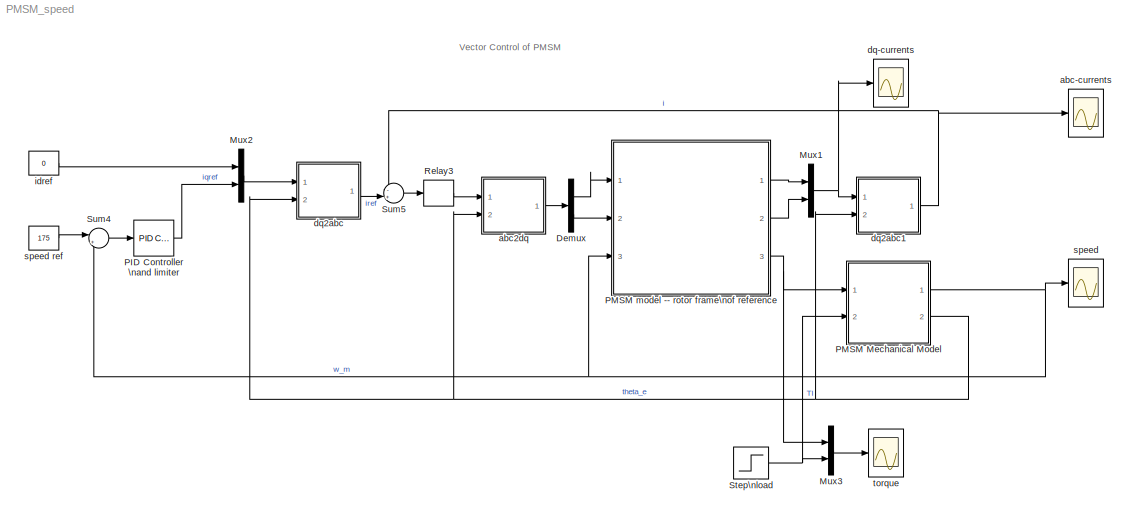
MODEL PMSM_speed
KIND model
CONFIG InitFcn = clc;\nclear;\nRa=2.875;\nLq=8.5e-3;\nLd=8.5e-3;\nphim=0.175;\np=8;\nJ=8e-4;\nBm=0;
CONFIG StopFcn = clc;
BLOCK [Demux] Demux
  Outputs = 2
  Ports = [1, 2]
  SID = 3
BLOCK [Mux] Mux1
  DisplayOption = bar
  Inputs = 2
  Ports = [2, 1]
  SID = 7
BLOCK [Mux] Mux2
  DisplayOption = bar
  Inputs = 2
  Ports = [2, 1]
  SID = 8
BLOCK [Mux] Mux3
  DisplayOption = bar
  Inputs = 2
  Ports = [2, 1]
  SID = 9
BLOCK [Reference] PID Controller \nand limiter  REF=simulink/Continuous/PID Controller
  AntiWindupMode = none
  Controller = P
  D = 0
  DOutDataTypeStr = Inherit: Inherit via internal rule
  DOutMax = []
  DOutMin = []
  DParamDataTypeStr = Inherit: Inherit via internal rule
  DParamMax = []
  DParamMin = []
  ExternalReset = none
  FilterContinuousStateAttributes = ''
  FilterMethod = Forward Euler
  FilterOutDataTypeStr = Inherit: Inherit via internal rule
  FilterOutMax = []
  FilterOutMin = []
  FilterRTWStateStorageClass = Auto
  FilterStateMustResolveToSignalObject = off
  Form = Parallel
  I = 1
  IOutDataTypeStr = Inherit: Inherit via internal rule
  IOutMax = []
  IOutMin = []
  IParamDataTypeStr = Inherit: Inherit via internal rule
  IParamMax = []
  IParamMin = []
  IgnoreLimit = off
  InitialConditionForFilter = 0
  InitialConditionForIntegrator = 0
  InitialConditionSource = internal
  IntegratorContinuousStateAttributes = ''
  IntegratorMethod = Forward Euler
  IntegratorOutDataTypeStr = Inherit: Inherit via internal rule
  IntegratorOutMax = []
  IntegratorOutMin = []
  IntegratorRTWStateStorageClass = Auto
  IntegratorStateMustResolveToSignalObject = off
  Kb = 1
  KbOutDataTypeStr = Inherit: Inherit via internal rule
  KbOutMax = []
  KbOutMin = []
  KbParamDataTypeStr = Inherit: Inherit via internal rule
  KbParamMax = []
  KbParamMin = []
  Kt = 1
  KtOutDataTypeStr = Inherit: Inherit via internal rule
  KtOutMax = []
  KtOutMin = []
  KtParamDataTypeStr = Inherit: Inherit via internal rule
  KtParamMax = []
  KtParamMin = []
  LimitOutput = on
  LinearizeAsGain = on
  LockScale = off
  LowerSaturationLimit = -10
  N = 100
  NOutDataTypeStr = Inherit: Inherit via internal rule
  NOutMax = []
  NOutMin = []
  NParamDataTypeStr = Inherit: Inherit via internal rule
  NParamMax = []
  NParamMin = []
  P = 10
  POutDataTypeStr = Inherit: Inherit via internal rule
  POutMax = []
  POutMin = []
  PParamDataTypeStr = Inherit: Inherit via internal rule
  PParamMax = []
  PParamMin = []
  Ports = [1, 1]
  RndMeth = Floor
  SID = 125
  SampleTime = 1
  SaturateOnIntegerOverflow = off
  SaturationOutDataTypeStr = Inherit: Same as input
  SaturationOutMax = []
  SaturationOutMin = []
  SourceBlock = simulink/Continuous/PID Controller
  SourceType = PID 1dof
  SumAccumDataTypeStr = Inherit: Inherit via internal rule
  SumDAccumDataTypeStr = Inherit: Inherit via internal rule
  SumDOutDataTypeStr = Inherit: Inherit via internal rule
  SumDOutMax = []
  SumDOutMin = []
  SumI1AccumDataTypeStr = Inherit: Inherit via internal rule
  SumI1OutDataTypeStr = Inherit: Inherit via internal rule
  SumI1OutMax = []
  SumI1OutMin = []
  SumI2AccumDataTypeStr = Inherit: Inherit via internal rule
  SumI2OutDataTypeStr = Inherit: Inherit via internal rule
  SumI2OutMax = []
  SumI2OutMin = []
  SumI3AccumDataTypeStr = Inherit: Inherit via internal rule
  SumI3OutDataTypeStr = Inherit: Inherit via internal rule
  SumI3OutMax = []
  SumI3OutMin = []
  SumOutDataTypeStr = Inherit: Inherit via internal rule
  SumOutMax = []
  SumOutMin = []
  TimeDomain = Continuous-time
  TrackingMode = off
  UpperSaturationLimit = 10
  ZeroCross = on
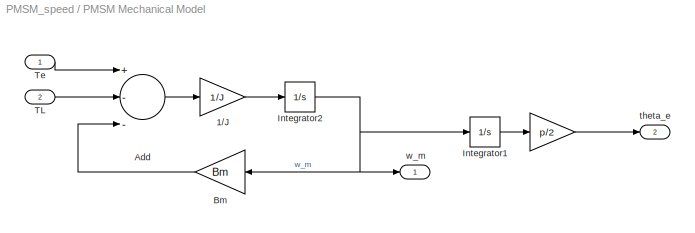
BLOCK [SubSystem] PMSM Mechanical Model
  FunctionWithSeparateData = off
  MaskHideContents = off
  MinAlgLoopOccurrences = off
  Opaque = off
  Ports = [2, 2]
  PropExecContextOutsideSubsystem = off
  RTWSystemCode = Auto
  RequestExecContextInheritance = off
  SID = 116
BLOCK [Gain] PMSM Mechanical Model/  
  Gain = p/2
  SID = 57
  SaturateOnIntegerOverflow = off
BLOCK [Gain] PMSM Mechanical Model/1//J
  Gain = 1/J
  SID = 1
  SaturateOnIntegerOverflow = off
BLOCK [Sum] PMSM Mechanical Model/Add
  InputSameDT = off
  Inputs = +--
  OutDataTypeStr = Inherit: Inherit via internal rule
  Ports = [3, 1]
  SID = 121
  SaturateOnIntegerOverflow = off
BLOCK [Gain] PMSM Mechanical Model/Bm
  Gain = Bm
  SID = 2
BLOCK [Integrator] PMSM Mechanical Model/Integrator1
  Ports = [1, 1]
  SID = 4
BLOCK [Integrator] PMSM Mechanical Model/Integrator2
  Ports = [1, 1]
  SID = 5
BLOCK [Inport] PMSM Mechanical Model/TL
  IconDisplay = Port number
  Port = 2
  SID = 124
BLOCK [Inport] PMSM Mechanical Model/Te
  IconDisplay = Port number
  SID = 123
BLOCK [Outport] PMSM Mechanical Model/theta_e
  IconDisplay = Port number
  Port = 2
  SID = 120
BLOCK [Outport] PMSM Mechanical Model/w_m
  IconDisplay = Port number
  SID = 119
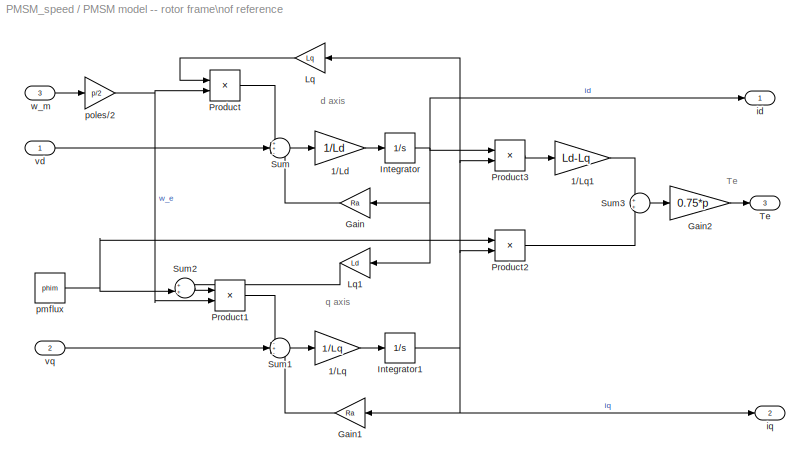
BLOCK [SubSystem] PMSM model -- rotor frame\nof reference
  FunctionWithSeparateData = off
  MaskHideContents = off
  MinAlgLoopOccurrences = off
  Opaque = off
  Ports = [3, 3]
  PropExecContextOutsideSubsystem = off
  RTWSystemCode = Auto
  RequestExecContextInheritance = off
  SID = 58
BLOCK [Gain] PMSM model -- rotor frame\nof reference/1//Ld
  Gain = 1/Ld
  SID = 62
BLOCK [Gain] PMSM model -- rotor frame\nof reference/1//Lq
  Gain = 1/Lq
  SID = 63
BLOCK [Gain] PMSM model -- rotor frame\nof reference/1//Lq1
  Gain = Ld-Lq
  SID = 64
BLOCK [Gain] PMSM model -- rotor frame\nof reference/Gain
  Gain = Ra
  SID = 65
BLOCK [Gain] PMSM model -- rotor frame\nof reference/Gain1
  Gain = Ra
  SID = 66
BLOCK [Gain] PMSM model -- rotor frame\nof reference/Gain2
  Gain = 0.75*p
  SID = 67
BLOCK [Integrator] PMSM model -- rotor frame\nof reference/Integrator
  Ports = [1, 1]
  SID = 68
BLOCK [Integrator] PMSM model -- rotor frame\nof reference/Integrator1
  Ports = [1, 1]
  SID = 69
BLOCK [Gain] PMSM model -- rotor frame\nof reference/Lq
  Gain = Lq
  SID = 70
BLOCK [Gain] PMSM model -- rotor frame\nof reference/Lq1
  Gain = Ld
  SID = 71
BLOCK [Product] PMSM model -- rotor frame\nof reference/Product
  Ports = [2, 1]
  RndMeth = Floor
  SID = 72
BLOCK [Product] PMSM model -- rotor frame\nof reference/Product1
  Ports = [2, 1]
  RndMeth = Floor
  SID = 73
BLOCK [Product] PMSM model -- rotor frame\nof reference/Product2
  Ports = [2, 1]
  RndMeth = Floor
  SID = 74
BLOCK [Product] PMSM model -- rotor frame\nof reference/Product3
  Ports = [2, 1]
  RndMeth = Floor
  SID = 75
BLOCK [Sum] PMSM model -- rotor frame\nof reference/Sum
  IconShape = round
  Inputs = ++-
  Ports = [3, 1]
  SID = 76
BLOCK [Sum] PMSM model -- rotor frame\nof reference/Sum1
  IconShape = round
  Inputs = -+-
  Ports = [3, 1]
  SID = 77
BLOCK [Sum] PMSM model -- rotor frame\nof reference/Sum2
  IconShape = round
  Inputs = ++|
  Ports = [2, 1]
  SID = 78
BLOCK [Sum] PMSM model -- rotor frame\nof reference/Sum3
  IconShape = round
  Ports = [2, 1]
  SID = 79
BLOCK [Outport] PMSM model -- rotor frame\nof reference/Te
  IconDisplay = Port number
  Port = 3
  SID = 84
BLOCK [Outport] PMSM model -- rotor frame\nof reference/id
  IconDisplay = Port number
  SID = 82
BLOCK [Outport] PMSM model -- rotor frame\nof reference/iq
  IconDisplay = Port number
  Port = 2
  SID = 83
BLOCK [Constant] PMSM model -- rotor frame\nof reference/pmflux
  SID = 80
  Value = phim
BLOCK [Gain] PMSM model -- rotor frame\nof reference/poles//2
  Gain = p/2
  SID = 81
BLOCK [Inport] PMSM model -- rotor frame\nof reference/vd
  IconDisplay = Port number
  SID = 59
BLOCK [Inport] PMSM model -- rotor frame\nof reference/vq
  IconDisplay = Port number
  Port = 2
  SID = 60
BLOCK [Inport] PMSM model -- rotor frame\nof reference/w_m
  IconDisplay = Port number
  Port = 3
  SID = 61
BLOCK [Relay] Relay3
  OffOutputValue = -155
  OffSwitchValue = -0.1
  OnOutputValue = 155
  OnSwitchValue = 0.1
  SID = 10
BLOCK [Step] Step\nload
  Before = 3
  SID = 11
  SampleTime = 0
  Time = 0.03
BLOCK [Sum] Sum4
  IconShape = round
  Inputs = |+-
  Ports = [2, 1]
  SID = 13
BLOCK [Sum] Sum5
  IconShape = round
  Inputs = -+|
  Ports = [2, 1]
  SID = 14
BLOCK [Scope] abc-currents
  DataFormat = StructureWithTime
  Floating = off
  MaxDataPoints = 25000
  NumInputPorts = 1
  Ports = [1]
  SID = 15
  SampleTime = 0
  ShowLegends = off
  TimeRange = 0.05
  YMax = 15
  YMin = -15
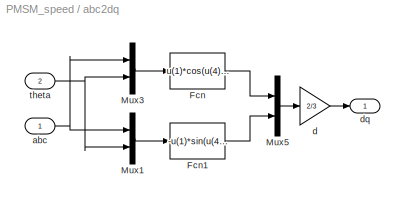
BLOCK [SubSystem] abc2dq
  FunctionWithSeparateData = off
  MaskHideContents = off
  MinAlgLoopOccurrences = off
  Opaque = off
  Ports = [2, 1]
  PropExecContextOutsideSubsystem = off
  RTWSystemCode = Auto
  RequestExecContextInheritance = off
  SID = 16
BLOCK [Fcn] abc2dq/Fcn
  Expr = u(1)*cos(u(4))+u(2)*cos(u(4)-2*pi/3)+u(3)*cos(u(4)+2*pi/3)
  SID = 19
BLOCK [Fcn] abc2dq/Fcn1
  Expr = -u(1)*sin(u(4))-u(2)*sin(u(4)-2*pi/3)-u(3)*sin(u(4)+2*pi/3)
  SID = 20
BLOCK [Mux] abc2dq/Mux1
  DisplayOption = bar
  Inputs = 2
  Ports = [2, 1]
  SID = 21
BLOCK [Mux] abc2dq/Mux3
  DisplayOption = bar
  Inputs = 2
  Ports = [2, 1]
  SID = 22
BLOCK [Mux] abc2dq/Mux5
  DisplayOption = bar
  Inputs = 2
  Ports = [2, 1]
  SID = 23
BLOCK [Inport] abc2dq/abc
  IconDisplay = Port number
  SID = 17
BLOCK [Gain] abc2dq/d
  Gain = 2/3
  SID = 24
  SaturateOnIntegerOverflow = off
BLOCK [Outport] abc2dq/dq
  IconDisplay = Port number
  SID = 25
BLOCK [Inport] abc2dq/theta
  IconDisplay = Port number
  Port = 2
  SID = 18
BLOCK [Scope] dq-currents
  DataFormat = StructureWithTime
  Floating = off
  MaxDataPoints = 25000
  NumInputPorts = 1
  Ports = [1]
  SID = 27
  SampleTime = 0
  SaveName = ScopeData3
  ShowLegends = off
  TimeRange = 0.05
  YMax = 12
  YMin = -2
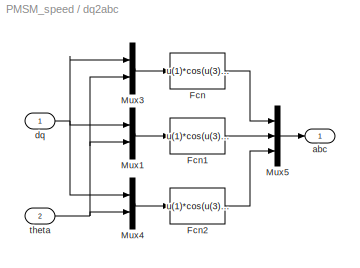
BLOCK [SubSystem] dq2abc
  FunctionWithSeparateData = off
  MaskHideContents = off
  MinAlgLoopOccurrences = off
  Opaque = off
  Ports = [2, 1]
  PropExecContextOutsideSubsystem = off
  RTWSystemCode = Auto
  RequestExecContextInheritance = off
  SID = 28
BLOCK [Fcn] dq2abc/Fcn
  Expr = u(1)*cos(u(3))-u(2)*sin(u(3))
  SID = 31
BLOCK [Fcn] dq2abc/Fcn1
  Expr = u(1)*cos(u(3)-2*pi/3)-u(2)*sin(u(3)-2*pi/3)
  SID = 32
BLOCK [Fcn] dq2abc/Fcn2
  Expr = u(1)*cos(u(3)+2*pi/3)-u(2)*sin(u(3)+2*pi/3)
  SID = 33
BLOCK [Mux] dq2abc/Mux1
  DisplayOption = bar
  Inputs = 2
  Ports = [2, 1]
  SID = 34
BLOCK [Mux] dq2abc/Mux3
  DisplayOption = bar
  Inputs = 2
  Ports = [2, 1]
  SID = 35
BLOCK [Mux] dq2abc/Mux4
  DisplayOption = bar
  Inputs = 2
  Ports = [2, 1]
  SID = 36
BLOCK [Mux] dq2abc/Mux5
  DisplayOption = bar
  Inputs = 3
  Ports = [3, 1]
  SID = 37
BLOCK [Outport] dq2abc/abc
  IconDisplay = Port number
  SID = 38
BLOCK [Inport] dq2abc/dq
  IconDisplay = Port number
  SID = 29
BLOCK [Inport] dq2abc/theta
  IconDisplay = Port number
  Port = 2
  SID = 30
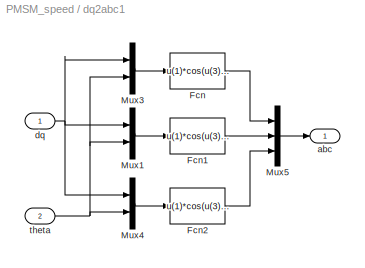
BLOCK [SubSystem] dq2abc1
  FunctionWithSeparateData = off
  MaskHideContents = off
  MinAlgLoopOccurrences = off
  Opaque = off
  Ports = [2, 1]
  PropExecContextOutsideSubsystem = off
  RTWSystemCode = Auto
  RequestExecContextInheritance = off
  SID = 39
BLOCK [Fcn] dq2abc1/Fcn
  Expr = u(1)*cos(u(3))-u(2)*sin(u(3))
  SID = 42
BLOCK [Fcn] dq2abc1/Fcn1
  Expr = u(1)*cos(u(3)-2*pi/3)-u(2)*sin(u(3)-2*pi/3)
  SID = 43
BLOCK [Fcn] dq2abc1/Fcn2
  Expr = u(1)*cos(u(3)+2*pi/3)-u(2)*sin(u(3)+2*pi/3)
  SID = 44
BLOCK [Mux] dq2abc1/Mux1
  DisplayOption = bar
  Inputs = 2
  Ports = [2, 1]
  SID = 45
BLOCK [Mux] dq2abc1/Mux3
  DisplayOption = bar
  Inputs = 2
  Ports = [2, 1]
  SID = 46
BLOCK [Mux] dq2abc1/Mux4
  DisplayOption = bar
  Inputs = 2
  Ports = [2, 1]
  SID = 47
BLOCK [Mux] dq2abc1/Mux5
  DisplayOption = bar
  Inputs = 3
  Ports = [3, 1]
  SID = 48
BLOCK [Outport] dq2abc1/abc
  IconDisplay = Port number
  SID = 49
BLOCK [Inport] dq2abc1/dq
  IconDisplay = Port number
  SID = 40
BLOCK [Inport] dq2abc1/theta
  IconDisplay = Port number
  Port = 2
  SID = 41
BLOCK [Constant] idref
  SID = 50
  Value = 0
BLOCK [Scope] speed
  DataFormat = StructureWithTime
  Floating = off
  MaxDataPoints = 25000
  NumInputPorts = 1
  Ports = [1]
  SID = 89
  SampleTime = 0
  SaveName = ScopeData1
  ShowLegends = off
  TimeRange = 0.05
  YMax = 200
  YMin = -50
BLOCK [Constant] speed ref
  SID = 90
  Value = 175
BLOCK [Scope] torque
  DataFormat = StructureWithTime
  Floating = off
  MaxDataPoints = 25000
  NumInputPorts = 1
  Ports = [1]
  SID = 91
  SampleTime = 0
  SaveName = ScopeData2
  ShowLegends = off
  TimeRange = 0.05
  YMax = 12
  YMin = 0
ANNOTATION (root): Vector Control of PMSM
ANNOTATION PMSM model -- rotor frame\nof reference: Te
ANNOTATION PMSM model -- rotor frame\nof reference: d axis
ANNOTATION PMSM model -- rotor frame\nof reference: q axis
LINE Demux:1 -> PMSM model -- rotor frame\nof reference:1
LINE Demux:2 -> PMSM model -- rotor frame\nof reference:2
NET Mux1:1 -> dq-currents:1, dq2abc1:1
LINE Mux2:1 -> dq2abc:1
LINE Mux3:1 -> torque:1
LINE PID Controller \nand limiter:1 -> Mux2:2
LINE PMSM Mechanical Model/  :1 -> PMSM Mechanical Model/theta_e:1
LINE PMSM Mechanical Model/1//J:1 -> PMSM Mechanical Model/Integrator2:1
LINE PMSM Mechanical Model/Add:1 -> PMSM Mechanical Model/1//J:1
LINE PMSM Mechanical Model/Bm:1 -> PMSM Mechanical Model/Add:3
LINE PMSM Mechanical Model/Integrator1:1 -> PMSM Mechanical Model/  :1
NET PMSM Mechanical Model/Integrator2:1 -> PMSM Mechanical Model/Bm:1, PMSM Mechanical Model/Integrator1:1, PMSM Mechanical Model/w_m:1
LINE PMSM Mechanical Model/TL:1 -> PMSM Mechanical Model/Add:2
LINE PMSM Mechanical Model/Te:1 -> PMSM Mechanical Model/Add:1
NET PMSM Mechanical Model:1 -> PMSM model -- rotor frame\nof reference:3, Sum4:2, speed:1
NET PMSM Mechanical Model:2 -> abc2dq:2, dq2abc1:2, dq2abc:2
LINE PMSM model -- rotor frame\nof reference/1//Ld:1 -> PMSM model -- rotor frame\nof reference/Integrator:1
LINE PMSM model -- rotor frame\nof reference/1//Lq1:1 -> PMSM model -- rotor frame\nof reference/Sum3:1
LINE PMSM model -- rotor frame\nof reference/1//Lq:1 -> PMSM model -- rotor frame\nof reference/Integrator1:1
LINE PMSM model -- rotor frame\nof reference/Gain1:1 -> PMSM model -- rotor frame\nof reference/Sum1:3
LINE PMSM model -- rotor frame\nof reference/Gain2:1 -> PMSM model -- rotor frame\nof reference/Te:1
LINE PMSM model -- rotor frame\nof reference/Gain:1 -> PMSM model -- rotor frame\nof reference/Sum:3
NET PMSM model -- rotor frame\nof reference/Integrator1:1 -> PMSM model -- rotor frame\nof reference/Gain1:1, PMSM model -- rotor frame\nof reference/Lq:1, PMSM model -- rotor frame\nof reference/Product2:2, PMSM model -- rotor frame\nof reference/Product3:2, PMSM model -- rotor frame\nof reference/iq:1
NET PMSM model -- rotor frame\nof reference/Integrator:1 -> PMSM model -- rotor frame\nof reference/Gain:1, PMSM model -- rotor frame\nof reference/Lq1:1, PMSM model -- rotor frame\nof reference/Product3:1, PMSM model -- rotor frame\nof reference/id:1
LINE PMSM model -- rotor frame\nof reference/Lq1:1 -> PMSM model -- rotor frame\nof reference/Sum2:1
LINE PMSM model -- rotor frame\nof reference/Lq:1 -> PMSM model -- rotor frame\nof reference/Product:1
LINE PMSM model -- rotor frame\nof reference/Product1:1 -> PMSM model -- rotor frame\nof reference/Sum1:1
LINE PMSM model -- rotor frame\nof reference/Product2:1 -> PMSM model -- rotor frame\nof reference/Sum3:2
LINE PMSM model -- rotor frame\nof reference/Product3:1 -> PMSM model -- rotor frame\nof reference/1//Lq1:1
LINE PMSM model -- rotor frame\nof reference/Product:1 -> PMSM model -- rotor frame\nof reference/Sum:1
LINE PMSM model -- rotor frame\nof reference/Sum1:1 -> PMSM model -- rotor frame\nof reference/1//Lq:1
LINE PMSM model -- rotor frame\nof reference/Sum2:1 -> PMSM model -- rotor frame\nof reference/Product1:1
LINE PMSM model -- rotor frame\nof reference/Sum3:1 -> PMSM model -- rotor frame\nof reference/Gain2:1
LINE PMSM model -- rotor frame\nof reference/Sum:1 -> PMSM model -- rotor frame\nof reference/1//Ld:1
NET PMSM model -- rotor frame\nof reference/pmflux:1 -> PMSM model -- rotor frame\nof reference/Product2:1, PMSM model -- rotor frame\nof reference/Sum2:2
NET PMSM model -- rotor frame\nof reference/poles//2:1 -> PMSM model -- rotor frame\nof reference/Product1:2, PMSM model -- rotor frame\nof reference/Product:2
LINE PMSM model -- rotor frame\nof reference/vd:1 -> PMSM model -- rotor frame\nof reference/Sum:2
LINE PMSM model -- rotor frame\nof reference/vq:1 -> PMSM model -- rotor frame\nof reference/Sum1:2
LINE PMSM model -- rotor frame\nof reference/w_m:1 -> PMSM model -- rotor frame\nof reference/poles//2:1
LINE PMSM model -- rotor frame\nof reference:1 -> Mux1:1
LINE PMSM model -- rotor frame\nof reference:2 -> Mux1:2
NET PMSM model -- rotor frame\nof reference:3 -> Mux3:1, PMSM Mechanical Model:1
LINE Relay3:1 -> abc2dq:1
NET Step\nload:1 -> Mux3:2, PMSM Mechanical Model:2
LINE Sum4:1 -> PID Controller \nand limiter:1
LINE Sum5:1 -> Relay3:1
LINE abc2dq/Fcn1:1 -> abc2dq/Mux5:2
LINE abc2dq/Fcn:1 -> abc2dq/Mux5:1
LINE abc2dq/Mux1:1 -> abc2dq/Fcn1:1
LINE abc2dq/Mux3:1 -> abc2dq/Fcn:1
LINE abc2dq/Mux5:1 -> abc2dq/d:1
NET abc2dq/abc:1 -> abc2dq/Mux1:1, abc2dq/Mux3:1
LINE abc2dq/d:1 -> abc2dq/dq:1
NET abc2dq/theta:1 -> abc2dq/Mux1:2, abc2dq/Mux3:2
LINE abc2dq:1 -> Demux:1
LINE dq2abc/Fcn1:1 -> dq2abc/Mux5:2
LINE dq2abc/Fcn2:1 -> dq2abc/Mux5:3
LINE dq2abc/Fcn:1 -> dq2abc/Mux5:1
LINE dq2abc/Mux1:1 -> dq2abc/Fcn1:1
LINE dq2abc/Mux3:1 -> dq2abc/Fcn:1
LINE dq2abc/Mux4:1 -> dq2abc/Fcn2:1
LINE dq2abc/Mux5:1 -> dq2abc/abc:1
NET dq2abc/dq:1 -> dq2abc/Mux1:1, dq2abc/Mux3:1, dq2abc/Mux4:1
NET dq2abc/theta:1 -> dq2abc/Mux1:2, dq2abc/Mux3:2, dq2abc/Mux4:2
LINE dq2abc1/Fcn1:1 -> dq2abc1/Mux5:2
LINE dq2abc1/Fcn2:1 -> dq2abc1/Mux5:3
LINE dq2abc1/Fcn:1 -> dq2abc1/Mux5:1
LINE dq2abc1/Mux1:1 -> dq2abc1/Fcn1:1
LINE dq2abc1/Mux3:1 -> dq2abc1/Fcn:1
LINE dq2abc1/Mux4:1 -> dq2abc1/Fcn2:1
LINE dq2abc1/Mux5:1 -> dq2abc1/abc:1
NET dq2abc1/dq:1 -> dq2abc1/Mux1:1, dq2abc1/Mux3:1, dq2abc1/Mux4:1
NET dq2abc1/theta:1 -> dq2abc1/Mux1:2, dq2abc1/Mux3:2, dq2abc1/Mux4:2
NET dq2abc1:1 -> Sum5:1, abc-currents:1
LINE dq2abc:1 -> Sum5:2
LINE idref:1 -> Mux2:1
LINE speed ref:1 -> Sum4:1
note: NET lines group one-source signal fan-out (src -> all destinations, sorted); 1:1 wires keep LINE
